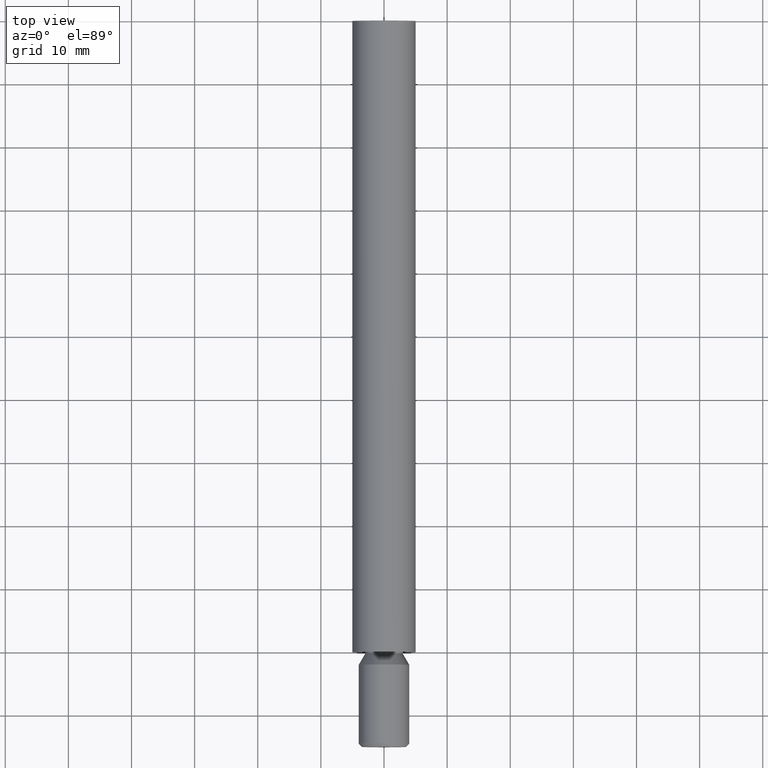
[diagram: clean part render]
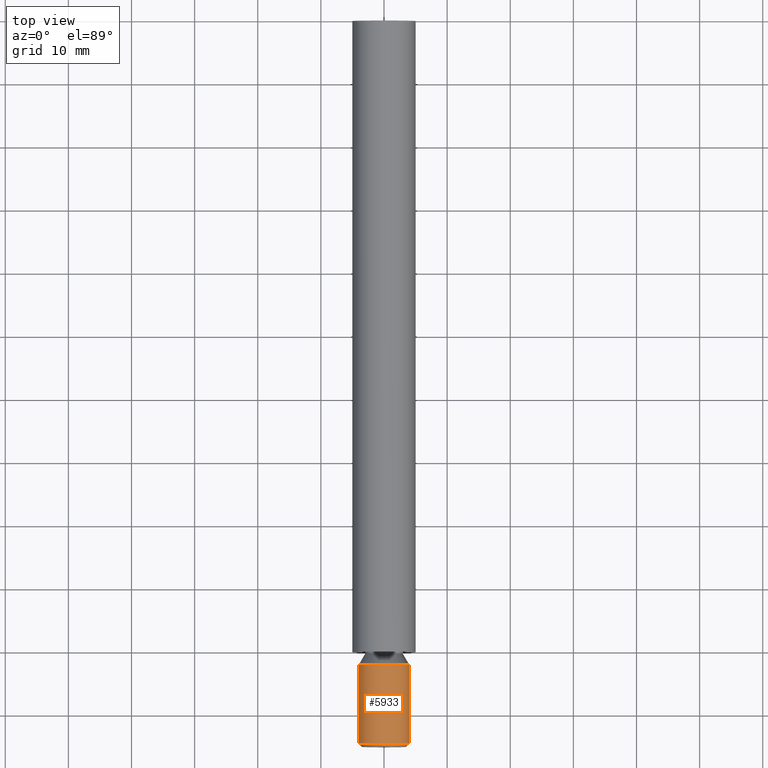
[diagram: same view with one face highlighted and labeled with its STEP entity id]
A machine part, top view. The second image highlights one B-rep face of the part: STEP entity #5933.
In plain terms, the highlighted cylindrical surface (bore or boss wall) has radius 4 mm, axis along (0, -1, -0).
Its self-contained STEP definition (entity closure, byte-faithful):
#623 = EDGE_LOOP ( 'NONE', ( #6916 ) ) ;
#1657 = EDGE_CURVE ( 'NONE', #11206, #11206, #4652, .T. ) ;
#2029 = ORIENTED_EDGE ( 'NONE', *, *, #9333, .T. ) ;
#2288 = CARTESIAN_POINT ( 'NONE',  ( 4.000000000000000000, -2.000000000000000000, 0.000000000000000000 ) ) ;
#3289 = VERTEX_POINT ( 'NONE', #11699 ) ;
#4328 = DIRECTION ( 'NONE',  ( 1.674721690771509348E-33, -1.000000000000000000, -0.000000000000000000 ) ) ;
#4652 = CIRCLE ( 'NONE', #10014, 4.000000000000000000 ) ;
#5933 = ADVANCED_FACE ( 'NONE', ( #6636, #7434 ), #10855, .T. ) ;
#6636 = FACE_OUTER_BOUND ( 'NONE', #9380, .T. ) ;
#6916 = ORIENTED_EDGE ( 'NONE', *, *, #1657, .T. ) ;
#7053 = AXIS2_PLACEMENT_3D ( 'NONE', #9655, #7731, #11801 ) ;
#7434 = FACE_OUTER_BOUND ( 'NONE', #623, .T. ) ;
#7731 = DIRECTION ( 'NONE',  ( -1.674721690771513454E-33, 1.000000000000000000, 0.000000000000000000 ) ) ;
#8562 = CARTESIAN_POINT ( 'NONE',  ( 1.708216124586939521E-31, -2.000000000000000000, 0.000000000000000000 ) ) ;
#8708 = CIRCLE ( 'NONE', #7053, 4.000000000000000888 ) ;
#9333 = EDGE_CURVE ( 'NONE', #3289, #3289, #8708, .T. ) ;
#9380 = EDGE_LOOP ( 'NONE', ( #2029 ) ) ;
#9655 = CARTESIAN_POINT ( 'NONE',  ( 1.917556335933378563E-31, -14.50000000000001599, 0.000000000000000000 ) ) ;
#9901 = CARTESIAN_POINT ( 'NONE',  ( 1.925929944387235853E-31, -15.00000000000000000, 0.000000000000000000 ) ) ;
#10014 = AXIS2_PLACEMENT_3D ( 'NONE', #8562, #4328, #11708 ) ;
#10827 = DIRECTION ( 'NONE',  ( 1.674721690771509348E-33, -1.000000000000000000, -0.000000000000000000 ) ) ;
#10855 = CYLINDRICAL_SURFACE ( 'NONE', #12157, 4.000000000000000888 ) ;
#10970 = DIRECTION ( 'NONE',  ( 1.000000000000000000, 0.000000000000000000, 0.000000000000000000 ) ) ;
#11206 = VERTEX_POINT ( 'NONE', #2288 ) ;
#11699 = CARTESIAN_POINT ( 'NONE',  ( 4.000000000000000888, -14.50000000000001599, 0.000000000000000000 ) ) ;
#11708 = DIRECTION ( 'NONE',  ( 1.000000000000000000, 0.000000000000000000, 0.000000000000000000 ) ) ;
#11801 = DIRECTION ( 'NONE',  ( 1.000000000000000000, 0.000000000000000000, 0.000000000000000000 ) ) ;
#12157 = AXIS2_PLACEMENT_3D ( 'NONE', #9901, #10827, #10970 ) ;